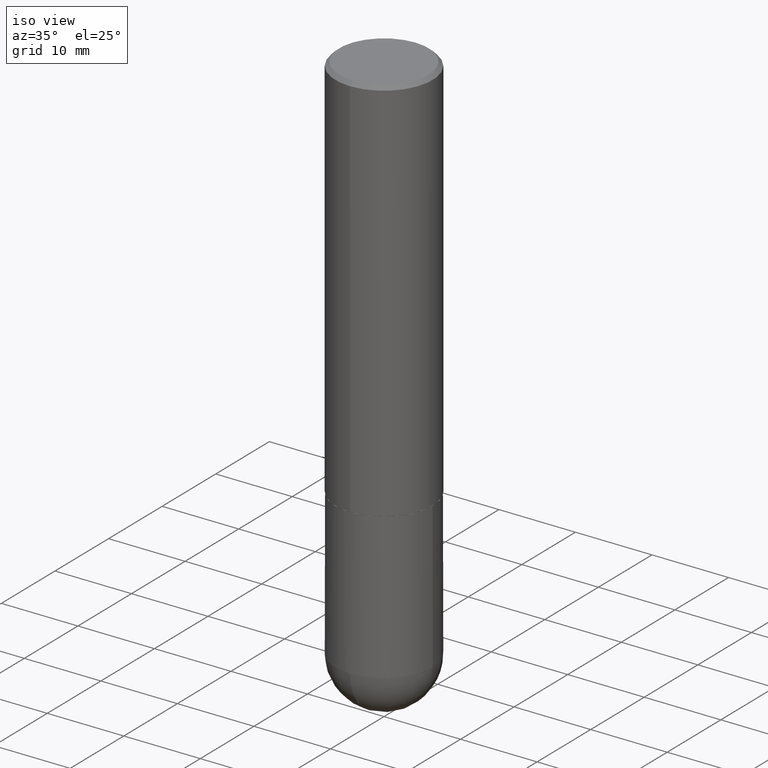
[diagram: clean part render]
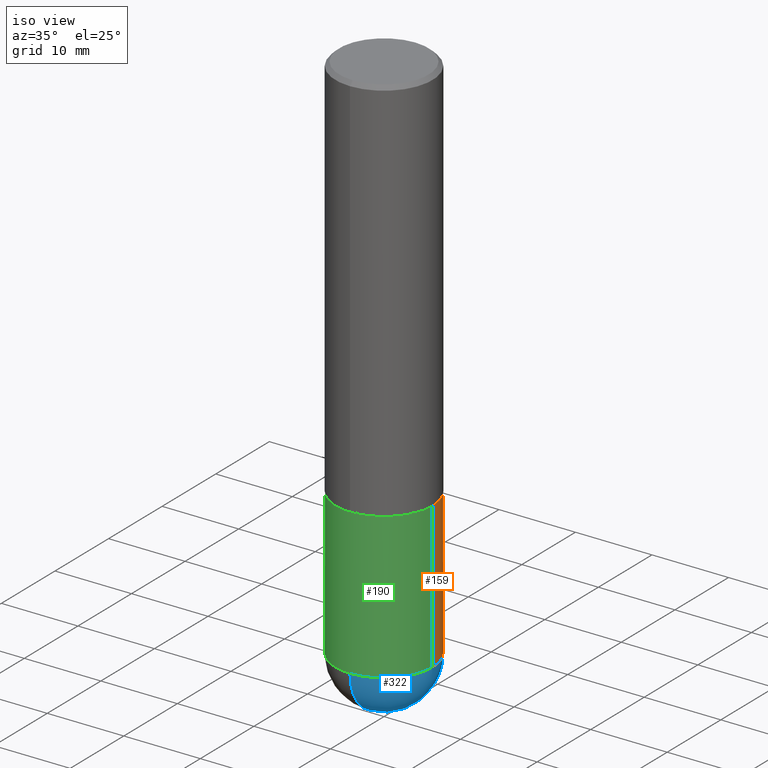
[diagram: same view with three faces highlighted in distinct colors, each labeled with its STEP entity id]
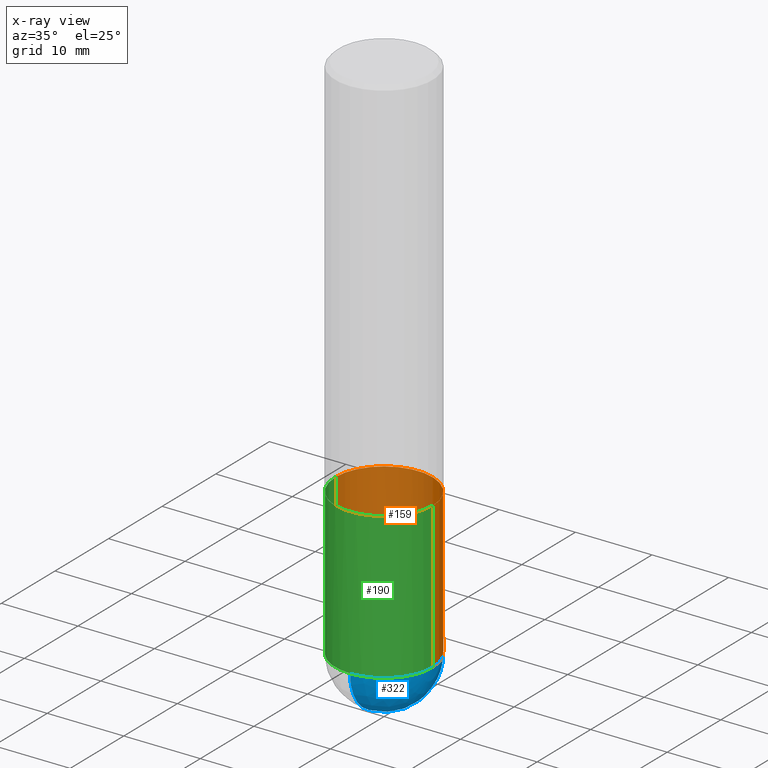
[diagram: x-ray of the same camera — body ghosted, the three highlighted faces saturated]
A machine part, iso view with three faces highlighted in distinct colors.
The next image is the same camera in x-ray (body ghosted, the three faces saturated) — at least one of them is partly hidden behind the body in this view.
Their STEP definitions:

[orange] entity #159 — the highlighted cylindrical surface (partial cylindrical patch) has radius 6.35 mm, axis along (-0, 0, 1).
#5 = CARTESIAN_POINT ( 'NONE',  ( 6.725039217009124520E-29, -9.601573681818649859E-15, -2.750000000000000000 ) ) ;
#19 = EDGE_CURVE ( 'NONE', #371, #403, #109, .T. ) ;
#23 = DIRECTION ( 'NONE',  ( -2.445468806185136877E-29, 3.491481338843145188E-15, 1.000000000000000000 ) ) ;
#37 = CARTESIAN_POINT ( 'NONE',  ( 0.2500000000000000000, -8.728703347107858632E-15, -2.000000000000000444 ) ) ;
#51 = CARTESIAN_POINT ( 'NONE',  ( 4.890937612370273754E-29, -6.982962677686291954E-15, -2.000000000000000444 ) ) ;
#61 = DIRECTION ( 'NONE',  ( 1.000000000000000000, -6.982962677686262766E-15, 0.000000000000000000 ) ) ;
#70 = EDGE_CURVE ( 'NONE', #107, #225, #170, .T. ) ;
#77 = DIRECTION ( 'NONE',  ( 1.000000000000000000, -6.982962677686266711E-15, 0.000000000000000000 ) ) ;
#92 = CARTESIAN_POINT ( 'NONE',  ( -0.2500000000000000000, -6.515911340352220442E-15, -2.000000000000000444 ) ) ;
#102 = DIRECTION ( 'NONE',  ( -2.445468806185136597E-29, 3.491481338843145583E-15, 1.000000000000000000 ) ) ;
#107 = VERTEX_POINT ( 'NONE', #243 ) ;
#109 = CIRCLE ( 'NONE', #349, 0.2500000000000000000 ) ;
#111 = AXIS2_PLACEMENT_3D ( 'NONE', #348, #319, #311 ) ;
#119 = DIRECTION ( 'NONE',  ( -2.445468806185136597E-29, 3.491481338843145583E-15, 1.000000000000000000 ) ) ;
#120 = LINE ( 'NONE', #249, #389 ) ;
#125 = ORIENTED_EDGE ( 'NONE', *, *, #219, .F. ) ;
#147 = CARTESIAN_POINT ( 'NONE',  ( 0.2500000000000000000, -1.745740669421566678E-15, 1.219044193948983948E-29 ) ) ;
#148 = CARTESIAN_POINT ( 'NONE',  ( 1.745740669421632745E-15, 0.2499999999999902300, -2.750000000000000888 ) ) ;
#159 = ADVANCED_FACE ( 'NONE', ( #214 ), #209, .T. ) ;
#170 = CIRCLE ( 'NONE', #318, 0.2500000000000000000 ) ;
#194 = EDGE_LOOP ( 'NONE', ( #339, #373, #404, #125, #309 ) ) ;
#209 = CYLINDRICAL_SURFACE ( 'NONE', #111, 0.2500000000000000000 ) ;
#214 = FACE_OUTER_BOUND ( 'NONE', #194, .T. ) ;
#216 = AXIS2_PLACEMENT_3D ( 'NONE', #5, #254, #324 ) ;
#219 = EDGE_CURVE ( 'NONE', #107, #371, #407, .T. ) ;
#225 = VERTEX_POINT ( 'NONE', #148 ) ;
#238 = VERTEX_POINT ( 'NONE', #408 ) ;
#243 = CARTESIAN_POINT ( 'NONE',  ( 0.2500000000000000000, -1.003800884917403995E-14, -2.750000000000000000 ) ) ;
#249 = CARTESIAN_POINT ( 'NONE',  ( -0.2500000000000000000, 1.776356839400250465E-15, -1.229733772563726445E-29 ) ) ;
#254 = DIRECTION ( 'NONE',  ( -2.445468806185136597E-29, 3.491481338843145583E-15, 1.000000000000000000 ) ) ;
#256 = DIRECTION ( 'NONE',  ( -2.445468806185136877E-29, 3.491481338843145188E-15, 1.000000000000000000 ) ) ;
#267 = VECTOR ( 'NONE', #23, 39.37007874015748143 ) ;
#309 = ORIENTED_EDGE ( 'NONE', *, *, #70, .T. ) ;
#311 = DIRECTION ( 'NONE',  ( 1.000000000000000000, -6.982962677686266711E-15, 4.876176775795935793E-29 ) ) ;
#318 = AXIS2_PLACEMENT_3D ( 'NONE', #398, #119, #61 ) ;
#319 = DIRECTION ( 'NONE',  ( -2.445468806185136597E-29, 3.491481338843145583E-15, 1.000000000000000000 ) ) ;
#324 = DIRECTION ( 'NONE',  ( 1.000000000000000000, -6.982962677686262766E-15, 0.000000000000000000 ) ) ;
#339 = ORIENTED_EDGE ( 'NONE', *, *, #340, .T. ) ;
#340 = EDGE_CURVE ( 'NONE', #225, #238, #388, .T. ) ;
#348 = CARTESIAN_POINT ( 'NONE',  ( 0.000000000000000000, 0.000000000000000000, 0.000000000000000000 ) ) ;
#349 = AXIS2_PLACEMENT_3D ( 'NONE', #51, #102, #77 ) ;
#371 = VERTEX_POINT ( 'NONE', #37 ) ;
#373 = ORIENTED_EDGE ( 'NONE', *, *, #394, .T. ) ;
#388 = CIRCLE ( 'NONE', #216, 0.2500000000000000000 ) ;
#389 = VECTOR ( 'NONE', #256, 39.37007874015748143 ) ;
#394 = EDGE_CURVE ( 'NONE', #238, #403, #120, .T. ) ;
#398 = CARTESIAN_POINT ( 'NONE',  ( 6.725039217009124520E-29, -9.601573681818649859E-15, -2.750000000000000000 ) ) ;
#403 = VERTEX_POINT ( 'NONE', #92 ) ;
#404 = ORIENTED_EDGE ( 'NONE', *, *, #19, .F. ) ;
#407 = LINE ( 'NONE', #147, #267 ) ;
#408 = CARTESIAN_POINT ( 'NONE',  ( -0.2500000000000000000, -6.515911340352222020E-15, -2.750000000000000000 ) ) ;

[blue] entity #322 — the highlighted spherical surface has radius 6.35 mm.
#22 = EDGE_LOOP ( 'NONE', ( #108, #295, #161, #208 ) ) ;
#33 = CARTESIAN_POINT ( 'NONE',  ( 7.015976219256266741E-29, -1.093331829968014633E-14, -3.000000000000000888 ) ) ;
#35 = CIRCLE ( 'NONE', #357, 0.2500000000000000000 ) ;
#50 = AXIS2_PLACEMENT_3D ( 'NONE', #381, #294, #325 ) ;
#53 = CARTESIAN_POINT ( 'NONE',  ( 6.725039217009124520E-29, -9.601573681818649859E-15, -2.750000000000000000 ) ) ;
#56 = DIRECTION ( 'NONE',  ( 1.000000000000000000, -6.982962677686262766E-15, 0.000000000000000000 ) ) ;
#61 = DIRECTION ( 'NONE',  ( 1.000000000000000000, -6.982962677686262766E-15, 0.000000000000000000 ) ) ;
#62 = SPHERICAL_SURFACE ( 'NONE', #50, 0.2500000000000001110 ) ;
#65 = DIRECTION ( 'NONE',  ( -1.000000000000000000, 7.105427357601001070E-15, -4.926315508542082329E-29 ) ) ;
#70 = EDGE_CURVE ( 'NONE', #107, #225, #170, .T. ) ;
#86 = DIRECTION ( 'NONE',  ( 1.000000000000000000, -6.982962677686265922E-15, 4.883557194083112340E-29 ) ) ;
#91 = CIRCLE ( 'NONE', #151, 0.2500000000000001110 ) ;
#94 = CARTESIAN_POINT ( 'NONE',  ( -1.776356839400184989E-15, -0.2500000000000098810, -2.749999999999998668 ) ) ;
#107 = VERTEX_POINT ( 'NONE', #243 ) ;
#108 = ORIENTED_EDGE ( 'NONE', *, *, #353, .F. ) ;
#119 = DIRECTION ( 'NONE',  ( -2.445468806185136597E-29, 3.491481338843145583E-15, 1.000000000000000000 ) ) ;
#128 = EDGE_CURVE ( 'NONE', #360, #225, #288, .T. ) ;
#129 = CARTESIAN_POINT ( 'NONE',  ( 6.393919439095240515E-29, -1.007575604995870173E-14, -2.750000000000000444 ) ) ;
#148 = CARTESIAN_POINT ( 'NONE',  ( 1.745740669421632745E-15, 0.2499999999999902300, -2.750000000000000888 ) ) ;
#151 = AXIS2_PLACEMENT_3D ( 'NONE', #129, #65, #222 ) ;
#161 = ORIENTED_EDGE ( 'NONE', *, *, #70, .F. ) ;
#170 = CIRCLE ( 'NONE', #318, 0.2500000000000000000 ) ;
#208 = ORIENTED_EDGE ( 'NONE', *, *, #210, .F. ) ;
#210 = EDGE_CURVE ( 'NONE', #329, #107, #35, .T. ) ;
#222 = DIRECTION ( 'NONE',  ( -7.105427357601001859E-15, -1.000000000000000000, 0.000000000000000000 ) ) ;
#225 = VERTEX_POINT ( 'NONE', #148 ) ;
#243 = CARTESIAN_POINT ( 'NONE',  ( 0.2500000000000000000, -1.003800884917403995E-14, -2.750000000000000000 ) ) ;
#248 = CARTESIAN_POINT ( 'NONE',  ( 6.393919439095240515E-29, -1.007575604995870173E-14, -2.750000000000000444 ) ) ;
#283 = DIRECTION ( 'NONE',  ( 6.982962677686266711E-15, 1.000000000000000000, 0.000000000000000000 ) ) ;
#288 = CIRCLE ( 'NONE', #297, 0.2500000000000001110 ) ;
#294 = DIRECTION ( 'NONE',  ( -1.000000000000000000, 6.982962677686265922E-15, -4.883557194083113462E-29 ) ) ;
#295 = ORIENTED_EDGE ( 'NONE', *, *, #128, .T. ) ;
#297 = AXIS2_PLACEMENT_3D ( 'NONE', #248, #86, #283 ) ;
#318 = AXIS2_PLACEMENT_3D ( 'NONE', #398, #119, #61 ) ;
#322 = ADVANCED_FACE ( 'NONE', ( #386 ), #62, .T. ) ;
#325 = DIRECTION ( 'NONE',  ( 6.982962677686265922E-15, 1.000000000000000000, -4.370956789862818783E-15 ) ) ;
#329 = VERTEX_POINT ( 'NONE', #94 ) ;
#344 = DIRECTION ( 'NONE',  ( -2.445468806185136597E-29, 3.491481338843145583E-15, 1.000000000000000000 ) ) ;
#353 = EDGE_CURVE ( 'NONE', #360, #329, #91, .T. ) ;
#357 = AXIS2_PLACEMENT_3D ( 'NONE', #53, #344, #56 ) ;
#360 = VERTEX_POINT ( 'NONE', #33 ) ;
#381 = CARTESIAN_POINT ( 'NONE',  ( 6.393919439095240515E-29, -1.007575604995870173E-14, -2.750000000000000444 ) ) ;
#386 = FACE_OUTER_BOUND ( 'NONE', #22, .T. ) ;
#398 = CARTESIAN_POINT ( 'NONE',  ( 6.725039217009124520E-29, -9.601573681818649859E-15, -2.750000000000000000 ) ) ;

[green] entity #190 — the highlighted cylindrical surface (partial cylindrical patch) has radius 6.35 mm, axis along (-0, 0, 1).
#15 = AXIS2_PLACEMENT_3D ( 'NONE', #152, #88, #316 ) ;
#23 = DIRECTION ( 'NONE',  ( -2.445468806185136877E-29, 3.491481338843145188E-15, 1.000000000000000000 ) ) ;
#27 = FACE_OUTER_BOUND ( 'NONE', #160, .T. ) ;
#35 = CIRCLE ( 'NONE', #357, 0.2500000000000000000 ) ;
#37 = CARTESIAN_POINT ( 'NONE',  ( 0.2500000000000000000, -8.728703347107858632E-15, -2.000000000000000444 ) ) ;
#53 = CARTESIAN_POINT ( 'NONE',  ( 6.725039217009124520E-29, -9.601573681818649859E-15, -2.750000000000000000 ) ) ;
#56 = DIRECTION ( 'NONE',  ( 1.000000000000000000, -6.982962677686262766E-15, 0.000000000000000000 ) ) ;
#69 = DIRECTION ( 'NONE',  ( 1.000000000000000000, -6.982962677686262766E-15, 0.000000000000000000 ) ) ;
#85 = CYLINDRICAL_SURFACE ( 'NONE', #15, 0.2500000000000000000 ) ;
#88 = DIRECTION ( 'NONE',  ( -2.445468806185136597E-29, 3.491481338843145583E-15, 1.000000000000000000 ) ) ;
#92 = CARTESIAN_POINT ( 'NONE',  ( -0.2500000000000000000, -6.515911340352220442E-15, -2.000000000000000444 ) ) ;
#93 = DIRECTION ( 'NONE',  ( -2.445468806185136597E-29, 3.491481338843145583E-15, 1.000000000000000000 ) ) ;
#94 = CARTESIAN_POINT ( 'NONE',  ( -1.776356839400184989E-15, -0.2500000000000098810, -2.749999999999998668 ) ) ;
#107 = VERTEX_POINT ( 'NONE', #243 ) ;
#120 = LINE ( 'NONE', #249, #389 ) ;
#143 = ORIENTED_EDGE ( 'NONE', *, *, #285, .F. ) ;
#144 = AXIS2_PLACEMENT_3D ( 'NONE', #359, #188, #69 ) ;
#147 = CARTESIAN_POINT ( 'NONE',  ( 0.2500000000000000000, -1.745740669421566678E-15, 1.219044193948983948E-29 ) ) ;
#152 = CARTESIAN_POINT ( 'NONE',  ( 0.000000000000000000, 0.000000000000000000, 0.000000000000000000 ) ) ;
#156 = ORIENTED_EDGE ( 'NONE', *, *, #394, .F. ) ;
#160 = EDGE_LOOP ( 'NONE', ( #156, #174, #165, #253, #143 ) ) ;
#165 = ORIENTED_EDGE ( 'NONE', *, *, #210, .T. ) ;
#174 = ORIENTED_EDGE ( 'NONE', *, *, #372, .T. ) ;
#188 = DIRECTION ( 'NONE',  ( -2.445468806185136597E-29, 3.491481338843145583E-15, 1.000000000000000000 ) ) ;
#190 = ADVANCED_FACE ( 'NONE', ( #27 ), #85, .T. ) ;
#210 = EDGE_CURVE ( 'NONE', #329, #107, #35, .T. ) ;
#217 = CARTESIAN_POINT ( 'NONE',  ( 4.890937612370273754E-29, -6.982962677686291954E-15, -2.000000000000000444 ) ) ;
#219 = EDGE_CURVE ( 'NONE', #107, #371, #407, .T. ) ;
#220 = DIRECTION ( 'NONE',  ( 1.000000000000000000, -6.982962677686266711E-15, 0.000000000000000000 ) ) ;
#223 = AXIS2_PLACEMENT_3D ( 'NONE', #217, #93, #220 ) ;
#238 = VERTEX_POINT ( 'NONE', #408 ) ;
#243 = CARTESIAN_POINT ( 'NONE',  ( 0.2500000000000000000, -1.003800884917403995E-14, -2.750000000000000000 ) ) ;
#245 = CIRCLE ( 'NONE', #223, 0.2500000000000000000 ) ;
#249 = CARTESIAN_POINT ( 'NONE',  ( -0.2500000000000000000, 1.776356839400250465E-15, -1.229733772563726445E-29 ) ) ;
#253 = ORIENTED_EDGE ( 'NONE', *, *, #219, .T. ) ;
#256 = DIRECTION ( 'NONE',  ( -2.445468806185136877E-29, 3.491481338843145188E-15, 1.000000000000000000 ) ) ;
#267 = VECTOR ( 'NONE', #23, 39.37007874015748143 ) ;
#285 = EDGE_CURVE ( 'NONE', #403, #371, #245, .T. ) ;
#316 = DIRECTION ( 'NONE',  ( 1.000000000000000000, -6.982962677686266711E-15, 4.876176775795935793E-29 ) ) ;
#328 = CIRCLE ( 'NONE', #144, 0.2500000000000000000 ) ;
#329 = VERTEX_POINT ( 'NONE', #94 ) ;
#344 = DIRECTION ( 'NONE',  ( -2.445468806185136597E-29, 3.491481338843145583E-15, 1.000000000000000000 ) ) ;
#357 = AXIS2_PLACEMENT_3D ( 'NONE', #53, #344, #56 ) ;
#359 = CARTESIAN_POINT ( 'NONE',  ( 6.725039217009124520E-29, -9.601573681818649859E-15, -2.750000000000000000 ) ) ;
#371 = VERTEX_POINT ( 'NONE', #37 ) ;
#372 = EDGE_CURVE ( 'NONE', #238, #329, #328, .T. ) ;
#389 = VECTOR ( 'NONE', #256, 39.37007874015748143 ) ;
#394 = EDGE_CURVE ( 'NONE', #238, #403, #120, .T. ) ;
#403 = VERTEX_POINT ( 'NONE', #92 ) ;
#407 = LINE ( 'NONE', #147, #267 ) ;
#408 = CARTESIAN_POINT ( 'NONE',  ( -0.2500000000000000000, -6.515911340352222020E-15, -2.750000000000000000 ) ) ;